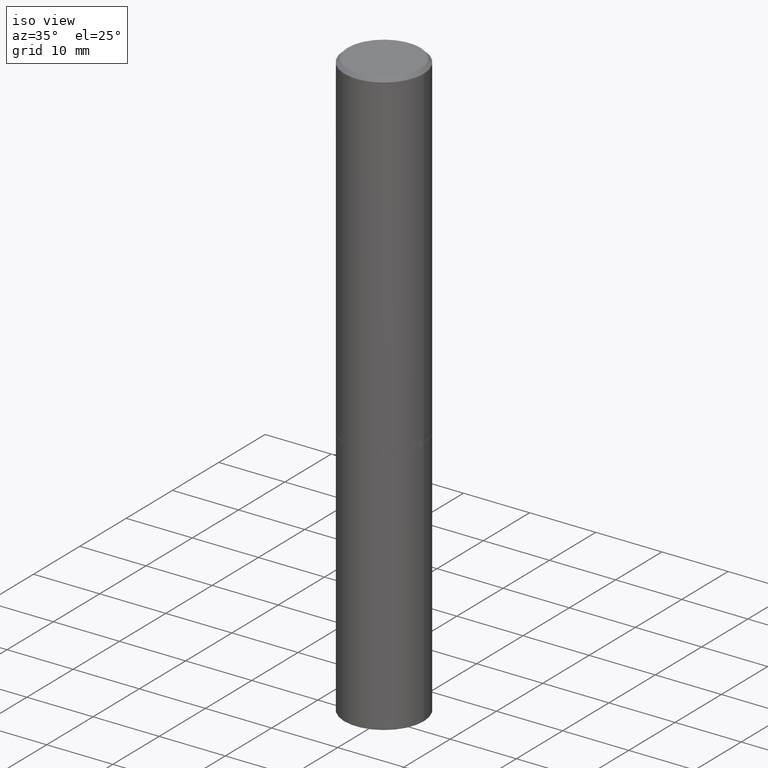
[diagram: clean part render]
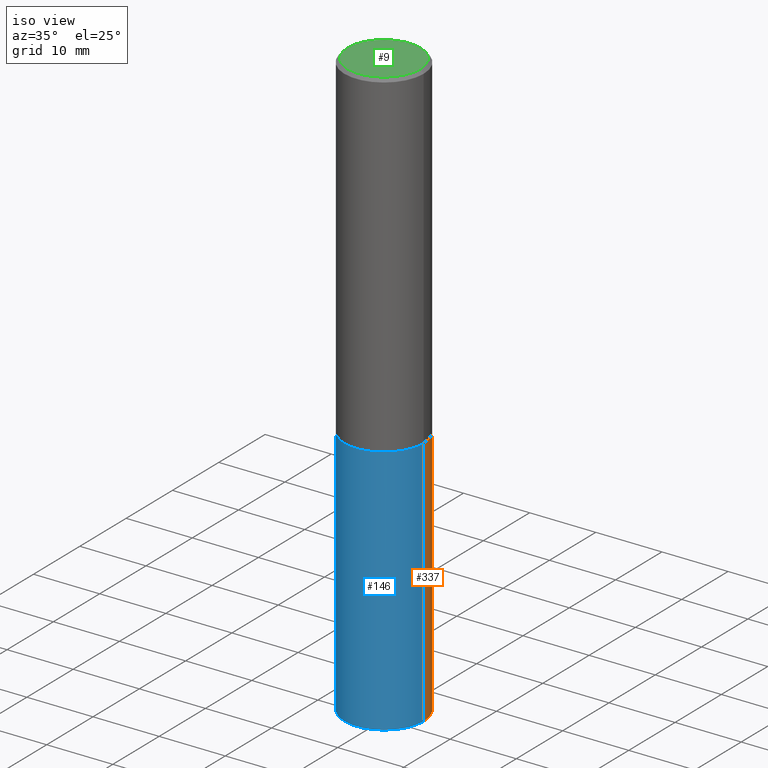
[diagram: same view with three faces highlighted in distinct colors, each labeled with its STEP entity id]
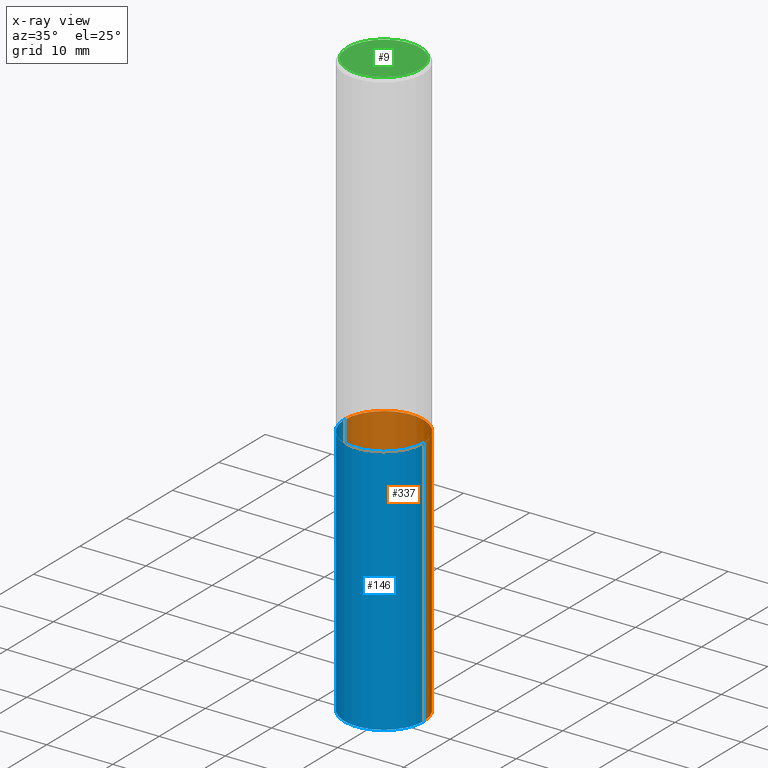
[diagram: x-ray of the same camera — body ghosted, the three highlighted faces saturated]
A machine part, iso view with three faces highlighted in distinct colors.
The next image is the same camera in x-ray (body ghosted, the three faces saturated) — at least one of them is partly hidden behind the body in this view.
Their STEP definitions:

[orange] entity #337 — the highlighted cylindrical surface (partial cylindrical patch) has radius 5.9995 mm, axis along (-0, 0, 1).
#8 = ORIENTED_EDGE ( 'NONE', *, *, #254, .F. ) ;
#23 = DIRECTION ( 'NONE',  ( 1.000000000000000000, -6.982962677686269077E-15, 0.000000000000000000 ) ) ;
#26 = VERTEX_POINT ( 'NONE', #94 ) ;
#29 = EDGE_CURVE ( 'NONE', #26, #112, #210, .T. ) ;
#41 = DIRECTION ( 'NONE',  ( -2.445468806185136877E-29, 3.491481338843145188E-15, 1.000000000000000000 ) ) ;
#48 = CARTESIAN_POINT ( 'NONE',  ( 0.2361999999999999933, -1.649375784469496131E-15, 1.151752954443000088E-29 ) ) ;
#55 = AXIS2_PLACEMENT_3D ( 'NONE', #330, #215, #75 ) ;
#75 = DIRECTION ( 'NONE',  ( 1.000000000000000000, -6.982962677686265133E-15, 0.000000000000000000 ) ) ;
#80 = CARTESIAN_POINT ( 'NONE',  ( 0.000000000000000000, 0.000000000000000000, 0.000000000000000000 ) ) ;
#91 = VECTOR ( 'NONE', #156, 39.37007874015748143 ) ;
#94 = CARTESIAN_POINT ( 'NONE',  ( -0.2361999999999999933, -7.943696905785525451E-15, -3.503899999999999793 ) ) ;
#102 = VECTOR ( 'NONE', #41, 39.37007874015748143 ) ;
#108 = DIRECTION ( 'NONE',  ( 1.000000000000000000, -6.982962677686266711E-15, 4.876176775795936353E-29 ) ) ;
#109 = ORIENTED_EDGE ( 'NONE', *, *, #260, .T. ) ;
#112 = VERTEX_POINT ( 'NONE', #347 ) ;
#135 = EDGE_CURVE ( 'NONE', #225, #112, #327, .T. ) ;
#138 = EDGE_LOOP ( 'NONE', ( #109, #233, #345, #8 ) ) ;
#156 = DIRECTION ( 'NONE',  ( -2.445468806185136877E-29, 3.491481338843145188E-15, 1.000000000000000000 ) ) ;
#190 = FACE_OUTER_BOUND ( 'NONE', #138, .T. ) ;
#209 = CIRCLE ( 'NONE', #55, 0.2361999999999999933 ) ;
#210 = LINE ( 'NONE', #267, #102 ) ;
#215 = DIRECTION ( 'NONE',  ( -2.445468806185136597E-29, 3.491481338843145583E-15, 1.000000000000000000 ) ) ;
#220 = CARTESIAN_POINT ( 'NONE',  ( 4.910012269058516525E-29, -7.010196232129267410E-15, -2.007800000000000029 ) ) ;
#225 = VERTEX_POINT ( 'NONE', #332 ) ;
#233 = ORIENTED_EDGE ( 'NONE', *, *, #29, .T. ) ;
#254 = EDGE_CURVE ( 'NONE', #317, #225, #272, .T. ) ;
#260 = EDGE_CURVE ( 'NONE', #317, #26, #209, .T. ) ;
#267 = CARTESIAN_POINT ( 'NONE',  ( -0.2361999999999999933, 1.678301941865356591E-15, -1.161852468318208757E-29 ) ) ;
#269 = AXIS2_PLACEMENT_3D ( 'NONE', #80, #339, #108 ) ;
#272 = LINE ( 'NONE', #48, #91 ) ;
#274 = DIRECTION ( 'NONE',  ( -2.445468806185136597E-29, 3.491481338843145583E-15, 1.000000000000000000 ) ) ;
#284 = CYLINDRICAL_SURFACE ( 'NONE', #269, 0.2361999999999999933 ) ;
#314 = CARTESIAN_POINT ( 'NONE',  ( 0.2361999999999999933, -1.388317724764199281E-14, -3.503899999999999793 ) ) ;
#317 = VERTEX_POINT ( 'NONE', #314 ) ;
#327 = CIRCLE ( 'NONE', #360, 0.2361999999999999933 ) ;
#330 = CARTESIAN_POINT ( 'NONE',  ( 8.568678149992099474E-29, -1.223380146317249786E-14, -3.503899999999999793 ) ) ;
#332 = CARTESIAN_POINT ( 'NONE',  ( 0.2361999999999999933, -8.659572016598763935E-15, -2.007800000000000029 ) ) ;
#337 = ADVANCED_FACE ( 'NONE', ( #190 ), #284, .T. ) ;
#339 = DIRECTION ( 'NONE',  ( -2.445468806185136597E-29, 3.491481338843145583E-15, 1.000000000000000000 ) ) ;
#345 = ORIENTED_EDGE ( 'NONE', *, *, #135, .F. ) ;
#347 = CARTESIAN_POINT ( 'NONE',  ( -0.2361999999999999933, -7.943696905785525451E-15, -2.007800000000000029 ) ) ;
#360 = AXIS2_PLACEMENT_3D ( 'NONE', #220, #274, #23 ) ;

[blue] entity #146 — the highlighted cylindrical surface (partial cylindrical patch) has radius 5.9995 mm, axis along (-0, 0, 1).
#14 = ORIENTED_EDGE ( 'NONE', *, *, #254, .T. ) ;
#26 = VERTEX_POINT ( 'NONE', #94 ) ;
#29 = EDGE_CURVE ( 'NONE', #26, #112, #210, .T. ) ;
#41 = DIRECTION ( 'NONE',  ( -2.445468806185136877E-29, 3.491481338843145188E-15, 1.000000000000000000 ) ) ;
#46 = DIRECTION ( 'NONE',  ( 1.000000000000000000, -6.982962677686266711E-15, 4.876176775795936353E-29 ) ) ;
#48 = CARTESIAN_POINT ( 'NONE',  ( 0.2361999999999999933, -1.649375784469496131E-15, 1.151752954443000088E-29 ) ) ;
#68 = AXIS2_PLACEMENT_3D ( 'NONE', #329, #247, #46 ) ;
#70 = DIRECTION ( 'NONE',  ( -2.445468806185136597E-29, 3.491481338843145583E-15, 1.000000000000000000 ) ) ;
#91 = VECTOR ( 'NONE', #156, 39.37007874015748143 ) ;
#94 = CARTESIAN_POINT ( 'NONE',  ( -0.2361999999999999933, -7.943696905785525451E-15, -3.503899999999999793 ) ) ;
#101 = CYLINDRICAL_SURFACE ( 'NONE', #68, 0.2361999999999999933 ) ;
#102 = VECTOR ( 'NONE', #41, 39.37007874015748143 ) ;
#112 = VERTEX_POINT ( 'NONE', #347 ) ;
#120 = ORIENTED_EDGE ( 'NONE', *, *, #29, .F. ) ;
#127 = FACE_OUTER_BOUND ( 'NONE', #349, .T. ) ;
#128 = CARTESIAN_POINT ( 'NONE',  ( 4.910012269058516525E-29, -7.010196232129267410E-15, -2.007800000000000029 ) ) ;
#146 = ADVANCED_FACE ( 'NONE', ( #127 ), #101, .T. ) ;
#154 = DIRECTION ( 'NONE',  ( 1.000000000000000000, -6.982962677686265133E-15, 0.000000000000000000 ) ) ;
#156 = DIRECTION ( 'NONE',  ( -2.445468806185136877E-29, 3.491481338843145188E-15, 1.000000000000000000 ) ) ;
#173 = CIRCLE ( 'NONE', #353, 0.2361999999999999933 ) ;
#189 = EDGE_CURVE ( 'NONE', #26, #317, #205, .T. ) ;
#200 = ORIENTED_EDGE ( 'NONE', *, *, #291, .F. ) ;
#205 = CIRCLE ( 'NONE', #223, 0.2361999999999999933 ) ;
#210 = LINE ( 'NONE', #267, #102 ) ;
#219 = DIRECTION ( 'NONE',  ( -2.445468806185136597E-29, 3.491481338843145583E-15, 1.000000000000000000 ) ) ;
#223 = AXIS2_PLACEMENT_3D ( 'NONE', #296, #219, #154 ) ;
#225 = VERTEX_POINT ( 'NONE', #332 ) ;
#247 = DIRECTION ( 'NONE',  ( -2.445468806185136597E-29, 3.491481338843145583E-15, 1.000000000000000000 ) ) ;
#254 = EDGE_CURVE ( 'NONE', #317, #225, #272, .T. ) ;
#267 = CARTESIAN_POINT ( 'NONE',  ( -0.2361999999999999933, 1.678301941865356591E-15, -1.161852468318208757E-29 ) ) ;
#272 = LINE ( 'NONE', #48, #91 ) ;
#291 = EDGE_CURVE ( 'NONE', #112, #225, #173, .T. ) ;
#293 = ORIENTED_EDGE ( 'NONE', *, *, #189, .T. ) ;
#296 = CARTESIAN_POINT ( 'NONE',  ( 8.568678149992099474E-29, -1.223380146317249786E-14, -3.503899999999999793 ) ) ;
#314 = CARTESIAN_POINT ( 'NONE',  ( 0.2361999999999999933, -1.388317724764199281E-14, -3.503899999999999793 ) ) ;
#317 = VERTEX_POINT ( 'NONE', #314 ) ;
#329 = CARTESIAN_POINT ( 'NONE',  ( 0.000000000000000000, 0.000000000000000000, 0.000000000000000000 ) ) ;
#332 = CARTESIAN_POINT ( 'NONE',  ( 0.2361999999999999933, -8.659572016598763935E-15, -2.007800000000000029 ) ) ;
#347 = CARTESIAN_POINT ( 'NONE',  ( -0.2361999999999999933, -7.943696905785525451E-15, -2.007800000000000029 ) ) ;
#349 = EDGE_LOOP ( 'NONE', ( #120, #293, #14, #200 ) ) ;
#353 = AXIS2_PLACEMENT_3D ( 'NONE', #128, #70, #361 ) ;
#361 = DIRECTION ( 'NONE',  ( 1.000000000000000000, -6.982962677686269077E-15, 0.000000000000000000 ) ) ;

[green] entity #9 — the highlighted planar face has unit normal (0, -0, -1).
#3 = VERTEX_POINT ( 'NONE', #239 ) ;
#9 = ADVANCED_FACE ( 'NONE', ( #265 ), #326, .F. ) ;
#19 = DIRECTION ( 'NONE',  ( 1.000000000000000000, -6.982962677686267499E-15, 4.876217060660161841E-29 ) ) ;
#21 = CARTESIAN_POINT ( 'NONE',  ( 0.2161999999999997257, -1.586759460484350016E-15, 4.268512490111238857E-18 ) ) ;
#44 = CARTESIAN_POINT ( 'NONE',  ( -1.043851414335219820E-46, 1.490343170380447200E-32, 4.268512490100411279E-18 ) ) ;
#52 = EDGE_LOOP ( 'NONE', ( #290, #143 ) ) ;
#67 = CIRCLE ( 'NONE', #275, 0.2161999999999997257 ) ;
#72 = EDGE_CURVE ( 'NONE', #3, #232, #67, .T. ) ;
#95 = CARTESIAN_POINT ( 'NONE',  ( -1.043851414335219820E-46, 1.490343170380447200E-32, 4.268512490100411279E-18 ) ) ;
#117 = DIRECTION ( 'NONE',  ( -1.000000000000000000, 6.982962677686265922E-15, -4.876176775795935793E-29 ) ) ;
#129 = AXIS2_PLACEMENT_3D ( 'NONE', #44, #334, #19 ) ;
#143 = ORIENTED_EDGE ( 'NONE', *, *, #157, .T. ) ;
#157 = EDGE_CURVE ( 'NONE', #232, #3, #292, .T. ) ;
#174 = DIRECTION ( 'NONE',  ( 1.000000000000000000, -6.982962677686267499E-15, 4.876217060660161841E-29 ) ) ;
#202 = DIRECTION ( 'NONE',  ( 2.438088387897960049E-29, -3.491481338843145188E-15, -1.000000000000000000 ) ) ;
#207 = DIRECTION ( 'NONE',  ( -2.445468806185136597E-29, 3.491481338843145583E-15, 1.000000000000000000 ) ) ;
#232 = VERTEX_POINT ( 'NONE', #21 ) ;
#239 = CARTESIAN_POINT ( 'NONE',  ( -0.2161999999999997257, 1.544631344304200197E-15, 4.268512490089730842E-18 ) ) ;
#264 = AXIS2_PLACEMENT_3D ( 'NONE', #294, #202, #117 ) ;
#265 = FACE_OUTER_BOUND ( 'NONE', #52, .T. ) ;
#275 = AXIS2_PLACEMENT_3D ( 'NONE', #95, #207, #174 ) ;
#290 = ORIENTED_EDGE ( 'NONE', *, *, #72, .T. ) ;
#292 = CIRCLE ( 'NONE', #129, 0.2161999999999997257 ) ;
#294 = CARTESIAN_POINT ( 'NONE',  ( 1.509716530915768746E-15, 0.2161999999999997257, -7.527240092128370190E-16 ) ) ;
#326 = PLANE ( 'NONE',  #264 ) ;
#334 = DIRECTION ( 'NONE',  ( -2.445468806185136597E-29, 3.491481338843145583E-15, 1.000000000000000000 ) ) ;